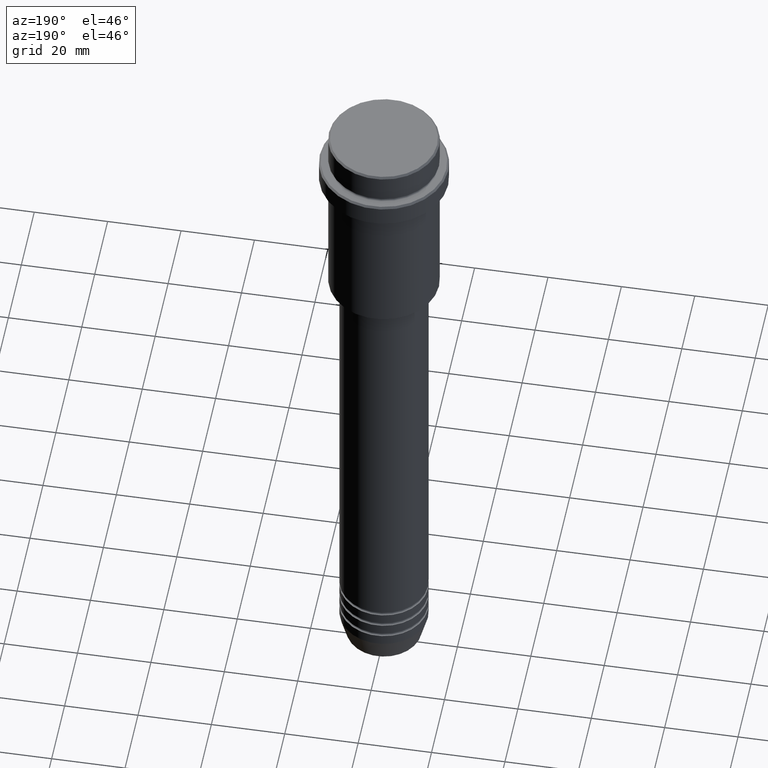
[diagram: clean part render]
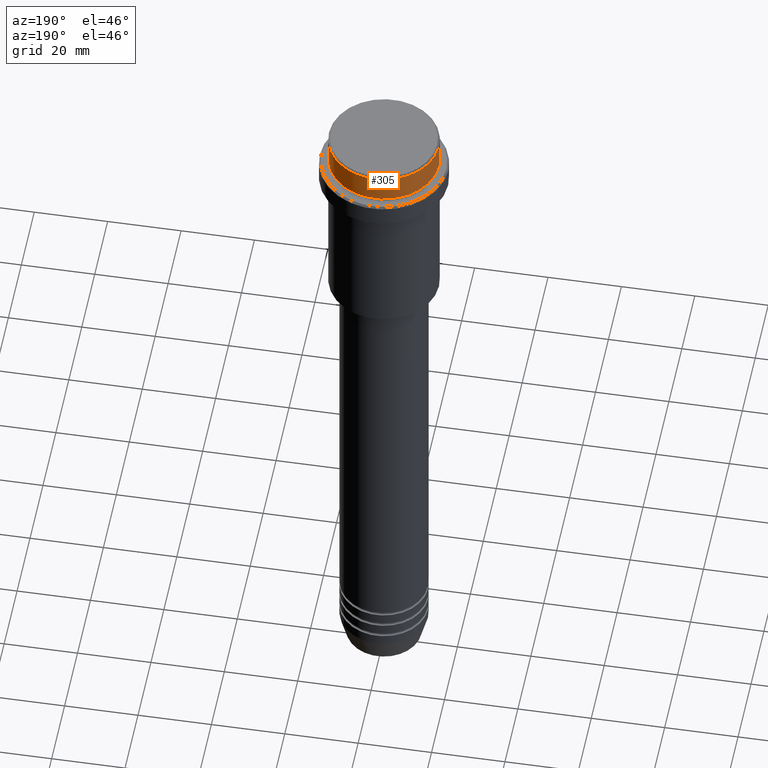
[diagram: same view with one face highlighted and labeled with its STEP entity id]
A machine part, auxiliary view. The second image highlights one B-rep face of the part: STEP entity #305.
In plain terms, the highlighted cylindrical surface (partial cylindrical patch) has radius 15 mm, axis along (-0, -0, 1).
Its self-contained STEP definition (entity closure, byte-faithful):
#1 = CIRCLE ( 'NONE', #213, 15.00000000000000000 ) ;
#65 = AXIS2_PLACEMENT_3D ( 'NONE', #664, #1293, #742 ) ;
#121 = VECTOR ( 'NONE', #428, 1000.000000000000000 ) ;
#174 = CARTESIAN_POINT ( 'NONE',  ( -15.00000000000000000, 1.836970198721029589E-15, -7.999999999999998224 ) ) ;
#188 = DIRECTION ( 'NONE',  ( -0.000000000000000000, -0.000000000000000000, 1.000000000000000000 ) ) ;
#206 = CARTESIAN_POINT ( 'NONE',  ( 0.000000000000000000, 0.000000000000000000, -0.4999999999999831246 ) ) ;
#213 = AXIS2_PLACEMENT_3D ( 'NONE', #399, #188, #516 ) ;
#217 = CYLINDRICAL_SURFACE ( 'NONE', #65, 15.00000000000000000 ) ;
#218 = VERTEX_POINT ( 'NONE', #174 ) ;
#273 = ORIENTED_EDGE ( 'NONE', *, *, #685, .T. ) ;
#291 = LINE ( 'NONE', #810, #1098 ) ;
#305 = ADVANCED_FACE ( 'NONE', ( #1402 ), #217, .T. ) ;
#399 = CARTESIAN_POINT ( 'NONE',  ( 0.000000000000000000, 0.000000000000000000, -7.999999999999998224 ) ) ;
#428 = DIRECTION ( 'NONE',  ( -0.000000000000000000, -0.000000000000000000, 1.000000000000000000 ) ) ;
#516 = DIRECTION ( 'NONE',  ( 1.000000000000000000, 0.000000000000000000, 0.000000000000000000 ) ) ;
#563 = ORIENTED_EDGE ( 'NONE', *, *, #1081, .T. ) ;
#644 = EDGE_CURVE ( 'NONE', #1153, #861, #291, .T. ) ;
#655 = CARTESIAN_POINT ( 'NONE',  ( 15.00000000000000000, 0.000000000000000000, -7.999999999999998224 ) ) ;
#664 = CARTESIAN_POINT ( 'NONE',  ( 0.000000000000000000, 0.000000000000000000, 0.000000000000000000 ) ) ;
#685 = EDGE_CURVE ( 'NONE', #1167, #861, #752, .T. ) ;
#742 = DIRECTION ( 'NONE',  ( 1.000000000000000000, 0.000000000000000000, 0.000000000000000000 ) ) ;
#752 = CIRCLE ( 'NONE', #1323, 15.00000000000000000 ) ;
#788 = ORIENTED_EDGE ( 'NONE', *, *, #1206, .T. ) ;
#804 = DIRECTION ( 'NONE',  ( -0.000000000000000000, -0.000000000000000000, 1.000000000000000000 ) ) ;
#810 = CARTESIAN_POINT ( 'NONE',  ( 15.00000000000000000, 0.000000000000000000, 0.000000000000000000 ) ) ;
#850 = LINE ( 'NONE', #1405, #121 ) ;
#861 = VERTEX_POINT ( 'NONE', #1003 ) ;
#964 = CARTESIAN_POINT ( 'NONE',  ( -15.00000000000000000, 1.836970198721029589E-15, -0.4999999999999831246 ) ) ;
#1003 = CARTESIAN_POINT ( 'NONE',  ( 15.00000000000000000, 0.000000000000000000, -0.4999999999999831246 ) ) ;
#1081 = EDGE_CURVE ( 'NONE', #1153, #218, #1, .T. ) ;
#1083 = DIRECTION ( 'NONE',  ( 0.000000000000000000, 0.000000000000000000, -1.000000000000000000 ) ) ;
#1098 = VECTOR ( 'NONE', #804, 1000.000000000000000 ) ;
#1099 = ORIENTED_EDGE ( 'NONE', *, *, #644, .F. ) ;
#1153 = VERTEX_POINT ( 'NONE', #655 ) ;
#1167 = VERTEX_POINT ( 'NONE', #964 ) ;
#1206 = EDGE_CURVE ( 'NONE', #218, #1167, #850, .T. ) ;
#1293 = DIRECTION ( 'NONE',  ( -0.000000000000000000, -0.000000000000000000, 1.000000000000000000 ) ) ;
#1323 = AXIS2_PLACEMENT_3D ( 'NONE', #206, #1083, #1407 ) ;
#1378 = EDGE_LOOP ( 'NONE', ( #563, #788, #273, #1099 ) ) ;
#1402 = FACE_OUTER_BOUND ( 'NONE', #1378, .T. ) ;
#1405 = CARTESIAN_POINT ( 'NONE',  ( -15.00000000000000000, 1.836970198721029589E-15, 0.000000000000000000 ) ) ;
#1407 = DIRECTION ( 'NONE',  ( 1.000000000000000000, 0.000000000000000000, 0.000000000000000000 ) ) ;